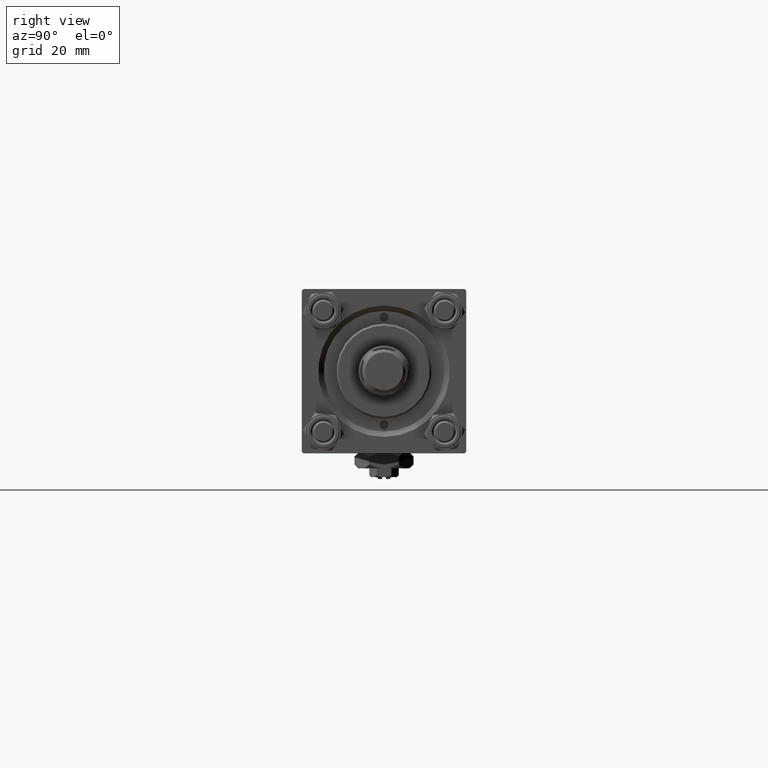
[diagram: clean part render]
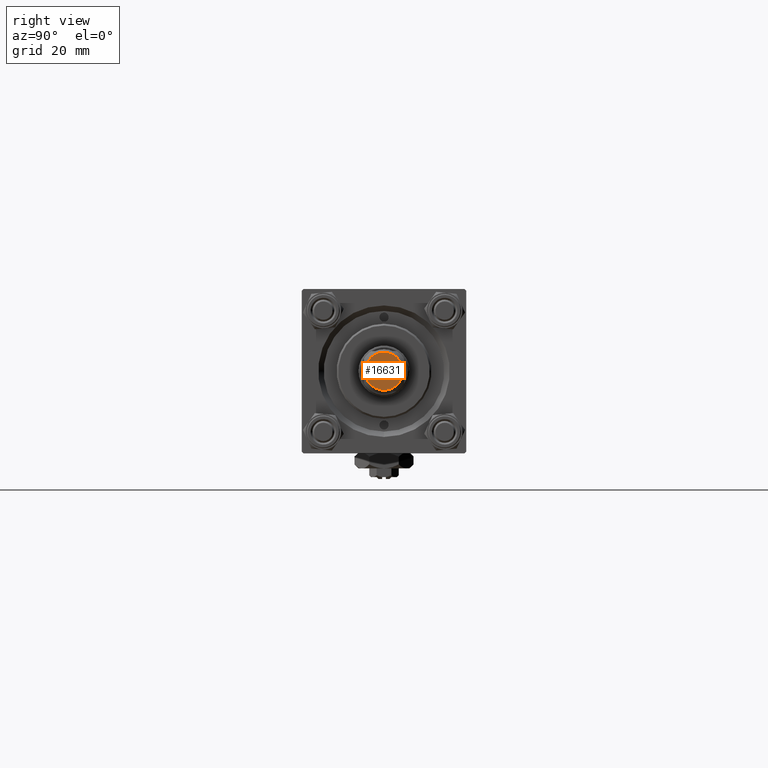
[diagram: same view with one face highlighted and labeled with its STEP entity id]
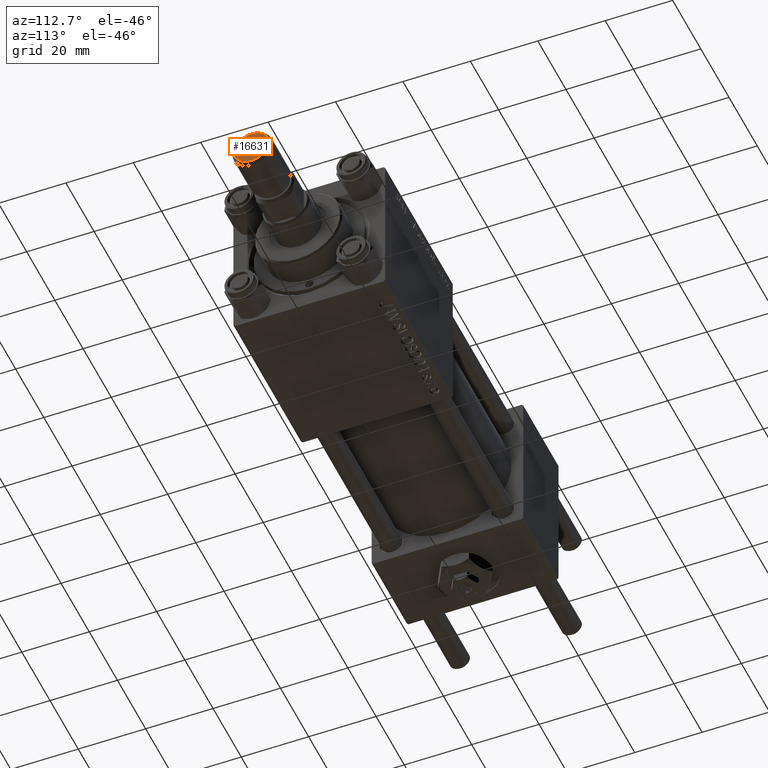
[diagram: same view with one face highlighted and labeled with its STEP entity id]
A machine part, right view. The second image highlights one B-rep face of the part: STEP entity #16631.
A second angle (auxiliary view) of the same face is appended — the face is thin or edge-on in the first view.
In plain terms, the highlighted planar face has unit normal (-1, 0, 0).
Its self-contained STEP definition (entity closure, byte-faithful):
#256 = CARTESIAN_POINT ( 'NONE',  ( -5.199999999999992184, 6.858022075225173621E-16, 0.000000000000000000 ) ) ;
#595 = AXIS2_PLACEMENT_3D ( 'NONE', #6469, #34235, #22616 ) ;
#6469 = CARTESIAN_POINT ( 'NONE',  ( 0.000000000000000000, 0.000000000000000000, 0.000000000000000000 ) ) ;
#7434 = CARTESIAN_POINT ( 'NONE',  ( 5.199999999999992184, 0.000000000000000000, 0.000000000000000000 ) ) ;
#7787 = DIRECTION ( 'NONE',  ( 0.000000000000000000, 0.000000000000000000, 1.000000000000000000 ) ) ;
#11771 = PLANE ( 'NONE',  #25088 ) ;
#12036 = DIRECTION ( 'NONE',  ( 1.000000000000000000, 0.000000000000000000, -0.000000000000000000 ) ) ;
#13249 = VERTEX_POINT ( 'NONE', #7434 ) ;
#13509 = DIRECTION ( 'NONE',  ( -0.000000000000000000, -0.000000000000000000, -1.000000000000000000 ) ) ;
#14250 = EDGE_CURVE ( 'NONE', #13249, #41372, #22482, .T. ) ;
#15736 = AXIS2_PLACEMENT_3D ( 'NONE', #49382, #13509, #29617 ) ;
#15764 = EDGE_CURVE ( 'NONE', #41372, #13249, #17468, .T. ) ;
#16631 = ADVANCED_FACE ( 'NONE', ( #44231 ), #11771, .F. ) ;
#17468 = CIRCLE ( 'NONE', #595, 5.199999999999992184 ) ;
#22482 = CIRCLE ( 'NONE', #15736, 5.199999999999992184 ) ;
#22616 = DIRECTION ( 'NONE',  ( 1.000000000000000000, 0.000000000000000000, 0.000000000000000000 ) ) ;
#24709 = CARTESIAN_POINT ( 'NONE',  ( 0.000000000000000000, 0.000000000000000000, 0.000000000000000000 ) ) ;
#25088 = AXIS2_PLACEMENT_3D ( 'NONE', #24709, #7787, #12036 ) ;
#29617 = DIRECTION ( 'NONE',  ( 1.000000000000000000, 0.000000000000000000, 0.000000000000000000 ) ) ;
#34235 = DIRECTION ( 'NONE',  ( -0.000000000000000000, -0.000000000000000000, -1.000000000000000000 ) ) ;
#37881 = EDGE_LOOP ( 'NONE', ( #39141, #44975 ) ) ;
#39141 = ORIENTED_EDGE ( 'NONE', *, *, #14250, .T. ) ;
#41372 = VERTEX_POINT ( 'NONE', #256 ) ;
#44231 = FACE_OUTER_BOUND ( 'NONE', #37881, .T. ) ;
#44975 = ORIENTED_EDGE ( 'NONE', *, *, #15764, .T. ) ;
#49382 = CARTESIAN_POINT ( 'NONE',  ( 0.000000000000000000, 0.000000000000000000, 0.000000000000000000 ) ) ;